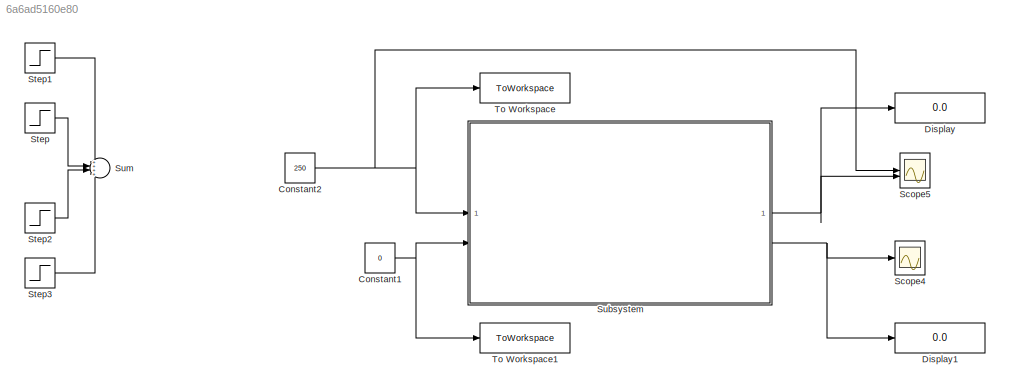
MODEL slx_6a6ad5160e80
KIND model
CONFIG AbsTol = auto
CONFIG EnableMultiTasking = off
CONFIG FixedStep = 0.01
CONFIG MaxStep = auto
CONFIG MinStep = auto
CONFIG RelTol = 1e-3
CONFIG SampleTimeConstraint = Unconstrained
CONFIG SolverName = VariableStepAuto
CONFIG StartTime = 0.0
CONFIG StopTime = inf
BLOCK [Constant] Constant1
  OutDataTypeStr = uint8
  Value = 0
BLOCK [Constant] Constant2
  OutDataTypeStr = uint8
  Value = 250
BLOCK [Display] Display
  Decimation = 1
BLOCK [Display] Display1
  Decimation = 1
BLOCK [Scope] Scope4
  Floating = off
  NumInputPorts = 1
  ScopeSpecificationString = Simulink.scopes.TimeScopeBlockCfg('CurrentConfiguration', extmgr.ConfigurationSet(extmgr.Configuration('Core','General UI',true),extmgr.Configuration('Core','Source UI',true),extmgr.Configuration('Sources','WiredSimulink',true,'DataLoggingVariableName','ScopeData2'),extmgr.Configuration('Visuals','Time Domain',true,'SerializedDisplays',{struct('MinYLimReal','-70.875','MaxYLimReal','637.875','YLabe...<+1779ch>
BLOCK [Scope] Scope5
  Floating = off
  NumInputPorts = 2
  ScopeSpecificationString = Simulink.scopes.TimeScopeBlockCfg('CurrentConfiguration', extmgr.ConfigurationSet(extmgr.Configuration('Core','General UI',true),extmgr.Configuration('Core','Source UI',true),extmgr.Configuration('Sources','WiredSimulink',true,'DataLoggingVariableName','ScopeData3'),extmgr.Configuration('Visuals','Time Domain',true,'SerializedDisplays',{struct('MinYLimReal','-33.875','MaxYLimReal','304.875','YLabe...<+1789ch>
BLOCK [Step] Step
  After = 50
  SampleTime = 0
  Time = 0
BLOCK [Step] Step1
  After = 50
  SampleTime = 0
  Time = 5
BLOCK [Step] Step2
  After = 50
  SampleTime = 0
  Time = 10
BLOCK [Step] Step3
  After = 50
  SampleTime = 0
  Time = 15
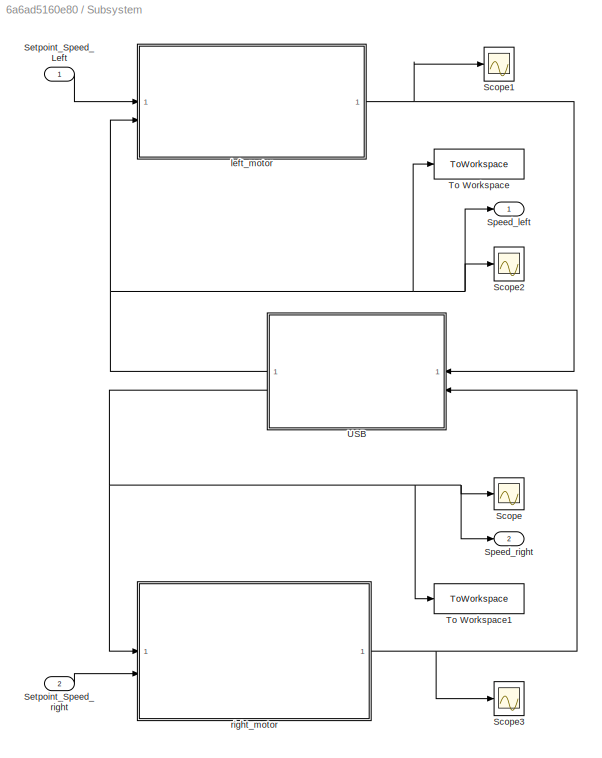
BLOCK [SubSystem] Subsystem
BLOCK [Scope] Subsystem/Scope
  Floating = off
  NumInputPorts = 1
  ScopeSpecificationString = Simulink.scopes.TimeScopeBlockCfg('CurrentConfiguration', extmgr.ConfigurationSet(extmgr.Configuration('Core','General UI',true),extmgr.Configuration('Core','Source UI',true),extmgr.Configuration('Sources','WiredSimulink',true,'DataLoggingVariableName','ScopeData1'),extmgr.Configuration('Visuals','Time Domain',true),extmgr.Configuration('Tools','Plot Navigation',true),extmgr.Configuration('Tools',...<+40ch>
BLOCK [Scope] Subsystem/Scope1
  Floating = off
  NumInputPorts = 1
  ScopeSpecificationString = Simulink.scopes.TimeScopeBlockCfg('CurrentConfiguration', extmgr.ConfigurationSet(extmgr.Configuration('Core','General UI',true),extmgr.Configuration('Core','Source UI',true),extmgr.Configuration('Sources','WiredSimulink',true,'DataLoggingVariableName','ScopeData1'),extmgr.Configuration('Visuals','Time Domain',true,'SerializedDisplays',{struct('MinYLimReal','-259.75','MaxYLimReal','2337.75','YLabe...<+1719ch>
BLOCK [Scope] Subsystem/Scope2
  Floating = off
  NumInputPorts = 1
  ScopeSpecificationString = Simulink.scopes.TimeScopeBlockCfg('CurrentConfiguration', extmgr.ConfigurationSet(extmgr.Configuration('Core','General UI',true),extmgr.Configuration('Core','Source UI',true),extmgr.Configuration('Sources','WiredSimulink',true),extmgr.Configuration('Visuals','Time Domain',true,'SerializedDisplays',{struct('MinYLimReal','-259.75','MaxYLimReal','2337.75','YLabelReal','','MinYLimMag',' 0.00000','MaxY...<+1675ch>
BLOCK [Scope] Subsystem/Scope3
  Floating = off
  NumInputPorts = 1
  ScopeSpecificationString = Simulink.scopes.TimeScopeBlockCfg('CurrentConfiguration', extmgr.ConfigurationSet(extmgr.Configuration('Core','General UI',true),extmgr.Configuration('Core','Source UI',true),extmgr.Configuration('Sources','WiredSimulink',true,'DataLoggingVariableName','ScopeData2'),extmgr.Configuration('Visuals','Time Domain',true,'SerializedDisplays',{struct('MinYLimReal','-259.75','MaxYLimReal','2337.75','YLabe...<+1755ch>
BLOCK [Inport] Subsystem/Setpoint_Speed_Left
BLOCK [Inport] Subsystem/Setpoint_Speed_right
  Port = 2
BLOCK [Outport] Subsystem/Speed_left
BLOCK [Outport] Subsystem/Speed_right
  Port = 2
BLOCK [ToWorkspace] Subsystem/To Workspace
  FixptAsFi = on
  MaxDataPoints = inf
  SampleTime = -1
  VariableName = left_motor
BLOCK [ToWorkspace] Subsystem/To Workspace1
  FixptAsFi = on
  MaxDataPoints = inf
  SampleTime = -1
  VariableName = right_motor
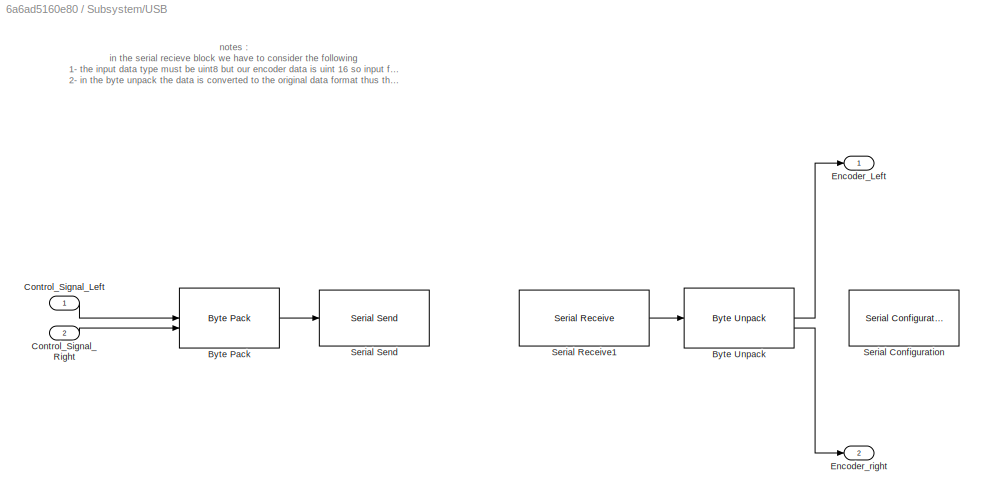
BLOCK [SubSystem] Subsystem/USB
  NameLocation = top
BLOCK [Reference] Subsystem/USB/Byte Pack  REF=svdutilitieslib/Byte Pack
  SourceBlock = svdutilitieslib/Byte Pack
  SourceType = Byte pack
BLOCK [Reference] Subsystem/USB/Byte Unpack  REF=etargetslib/Byte Unpack
  LibrarySourceBlock = embeddedtargetslib/Host Communication/Byte Unpack
  SourceBlock = etargetslib/Byte Unpack
  SourceType = Byte Unpack
BLOCK [Inport] Subsystem/USB/Control_Signal_Left
BLOCK [Inport] Subsystem/USB/Control_Signal_Right
  Port = 2
BLOCK [Outport] Subsystem/USB/Encoder_Left
BLOCK [Outport] Subsystem/USB/Encoder_right
  Port = 2
BLOCK [Reference] Subsystem/USB/Serial Configuration  REF=instrumentseriallib/Serial Configuration
  LibrarySourceBlock = embeddedtargetslib/Host Communication/Serial Configuration
  Priority = -200000
  SourceBlock = instrumentseriallib/Serial Configuration
  SourceType = system.SerialConfiguration
BLOCK [Reference] Subsystem/USB/Serial Receive1  REF=instrumentseriallib/Serial Receive
  LibrarySourceBlock = instrumentlib/Serial Receive
  Priority = 1
  SourceBlock = instrumentseriallib/Serial Receive
  SourceType = system.SerialReceive
BLOCK [Reference] Subsystem/USB/Serial Send  REF=instrumentseriallib/Serial Send
  LibrarySourceBlock = embeddedtargetslib/Host Communication/Serial Send
  Priority = 1
  SourceBlock = instrumentseriallib/Serial Send
  SourceType = system.SerialSend
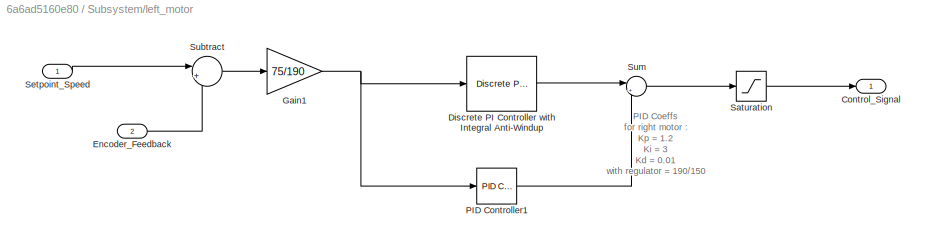
BLOCK [SubSystem] Subsystem/left_motor
BLOCK [Outport] Subsystem/left_motor/Control_Signal
BLOCK [Reference] Subsystem/left_motor/Discrete PI Controller with Integral Anti-Windup  REF=eeDiscretePi/Discrete PI Controller
with Integral Anti-Windup
  LibrarySourceBlock = ee_sl_lib/General Control/Discrete PI Controller\nwith Integral Anti-Windup
  SourceBlock = eeDiscretePi/Discrete PI Controller\nwith Integral Anti-Windup
  SourceType = Discrete PI Controller with Integral Anti-Windup
BLOCK [Inport] Subsystem/left_motor/Encoder_Feedback
  Port = 2
BLOCK [Gain] Subsystem/left_motor/Gain1
  Gain = 75/190
  OutDataTypeStr = int32
BLOCK [Reference] Subsystem/left_motor/PID Controller1  REF=slpidlib/PID Controller
  LibrarySourceBlock = simulink/Continuous/PID Controller
  SourceBlock = slpidlib/PID Controller
  SourceType = PID 1dof
BLOCK [Saturate] Subsystem/left_motor/Saturation
  LowerLimit = 0
  OutDataTypeStr = uint8
  UpperLimit = 100
BLOCK [Inport] Subsystem/left_motor/Setpoint_Speed
BLOCK [Sum] Subsystem/left_motor/Subtract
  Inputs = |+-
  OutDataTypeStr = int32
  RndMeth = Round
BLOCK [Sum] Subsystem/left_motor/Sum
  Inputs = |++
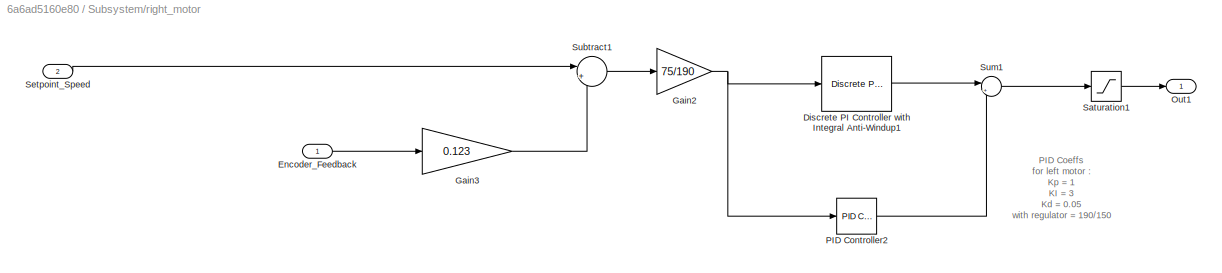
BLOCK [SubSystem] Subsystem/right_motor
BLOCK [Reference] Subsystem/right_motor/Discrete PI Controller with Integral Anti-Windup1  REF=eeDiscretePi/Discrete PI Controller
with Integral Anti-Windup
  LibrarySourceBlock = ee_sl_lib/General Control/Discrete PI Controller\nwith Integral Anti-Windup
  SourceBlock = eeDiscretePi/Discrete PI Controller\nwith Integral Anti-Windup
  SourceType = Discrete PI Controller with Integral Anti-Windup
BLOCK [Inport] Subsystem/right_motor/Encoder_Feedback
  NameLocation = top
BLOCK [Gain] Subsystem/right_motor/Gain2
  Gain = 75/190
  OutDataTypeStr = int32
BLOCK [Gain] Subsystem/right_motor/Gain3
  Gain = 0.123
  OutDataTypeStr = int32
BLOCK [Outport] Subsystem/right_motor/Out1
BLOCK [Reference] Subsystem/right_motor/PID Controller2  REF=slpidlib/PID Controller
  LibrarySourceBlock = simulink/Continuous/PID Controller
  SourceBlock = slpidlib/PID Controller
  SourceType = PID 1dof
BLOCK [Saturate] Subsystem/right_motor/Saturation1
  LowerLimit = 0
  OutDataTypeStr = uint8
  UpperLimit = 100
BLOCK [Inport] Subsystem/right_motor/Setpoint_Speed
  Port = 2
BLOCK [Sum] Subsystem/right_motor/Subtract1
  Inputs = |+-
  NameLocation = top
  OutDataTypeStr = int32
  RndMeth = Round
BLOCK [Sum] Subsystem/right_motor/Sum1
  Inputs = |++
BLOCK [Sum] Sum
  Inputs = ++++
BLOCK [ToWorkspace] To Workspace
  FixptAsFi = on
  MaxDataPoints = inf
  SampleTime = -1
  SaveFormat = Timeseries
  VariableName = in_left
BLOCK [ToWorkspace] To Workspace1
  FixptAsFi = on
  MaxDataPoints = inf
  SampleTime = -1
  SaveFormat = Timeseries
  VariableName = in_right
ANNOTATION Subsystem/USB: notes : in the serial recieve block we have to consider the following 1- the input data type must be uint8 but our encoder data is uint 16 so input format is column major and the data size is [1 2] 2- in the byte unpack the data is converted to the original data format thus the output port data type is uint16
ANNOTATION Subsystem/left_motor: PID Coeffs for right motor : Kp = 1.2 Ki = 3 Kd = 0.01 with regulator = 190/150 for right motor:
ANNOTATION Subsystem/right_motor: PID Coeffs for left motor : Kp = 1 KI = 3 Kd = 0.05 with regulator = 190/150 for right motor:
NET Constant1:1 -> Subsystem:2, To Workspace1:1
NET Constant2:1 -> Scope5:1, Subsystem:1, To Workspace:1
LINE Step1:1 -> Sum:1
LINE Step2:1 -> Sum:3
LINE Step3:1 -> Sum:4
LINE Step:1 -> Sum:2
LINE Subsystem/Setpoint_Speed_Left:1 -> Subsystem/left_motor:1
LINE Subsystem/Setpoint_Speed_right:1 -> Subsystem/right_motor:2
LINE Subsystem/USB/Byte Pack:1 -> Subsystem/USB/Serial Send:1
LINE Subsystem/USB/Byte Unpack:1 -> Subsystem/USB/Encoder_Left:1
LINE Subsystem/USB/Byte Unpack:2 -> Subsystem/USB/Encoder_right:1
LINE Subsystem/USB/Control_Signal_Left:1 -> Subsystem/USB/Byte Pack:1
LINE Subsystem/USB/Control_Signal_Right:1 -> Subsystem/USB/Byte Pack:2
LINE Subsystem/USB/Serial Receive1:1 -> Subsystem/USB/Byte Unpack:1
NET Subsystem/USB:1 -> Subsystem/Scope2:1, Subsystem/Speed_left:1, Subsystem/To Workspace:1, Subsystem/left_motor:2
NET Subsystem/USB:2 -> Subsystem/Scope:1, Subsystem/Speed_right:1, Subsystem/To Workspace1:1, Subsystem/right_motor:1
LINE Subsystem/left_motor/Discrete PI Controller with Integral Anti-Windup:1 -> Subsystem/left_motor/Sum:1
LINE Subsystem/left_motor/Encoder_Feedback:1 -> Subsystem/left_motor/Subtract:2
NET Subsystem/left_motor/Gain1:1 -> Subsystem/left_motor/Discrete PI Controller with Integral Anti-Windup:1, Subsystem/left_motor/PID Controller1:1
LINE Subsystem/left_motor/PID Controller1:1 -> Subsystem/left_motor/Sum:2
LINE Subsystem/left_motor/Saturation:1 -> Subsystem/left_motor/Control_Signal:1
LINE Subsystem/left_motor/Setpoint_Speed:1 -> Subsystem/left_motor/Subtract:1
LINE Subsystem/left_motor/Subtract:1 -> Subsystem/left_motor/Gain1:1
LINE Subsystem/left_motor/Sum:1 -> Subsystem/left_motor/Saturation:1
NET Subsystem/left_motor:1 -> Subsystem/Scope1:1, Subsystem/USB:1
LINE Subsystem/right_motor/Discrete PI Controller with Integral Anti-Windup1:1 -> Subsystem/right_motor/Sum1:1
LINE Subsystem/right_motor/Encoder_Feedback:1 -> Subsystem/right_motor/Gain3:1
NET Subsystem/right_motor/Gain2:1 -> Subsystem/right_motor/Discrete PI Controller with Integral Anti-Windup1:1, Subsystem/right_motor/PID Controller2:1
LINE Subsystem/right_motor/Gain3:1 -> Subsystem/right_motor/Subtract1:2
LINE Subsystem/right_motor/PID Controller2:1 -> Subsystem/right_motor/Sum1:2
LINE Subsystem/right_motor/Saturation1:1 -> Subsystem/right_motor/Out1:1
LINE Subsystem/right_motor/Setpoint_Speed:1 -> Subsystem/right_motor/Subtract1:1
LINE Subsystem/right_motor/Subtract1:1 -> Subsystem/right_motor/Gain2:1
LINE Subsystem/right_motor/Sum1:1 -> Subsystem/right_motor/Saturation1:1
NET Subsystem/right_motor:1 -> Subsystem/Scope3:1, Subsystem/USB:2
NET Subsystem:1 -> Display:1, Scope5:2
NET Subsystem:2 -> Display1:1, Scope4:1
note: NET lines group one-source signal fan-out (src -> all destinations, sorted); 1:1 wires keep LINE
